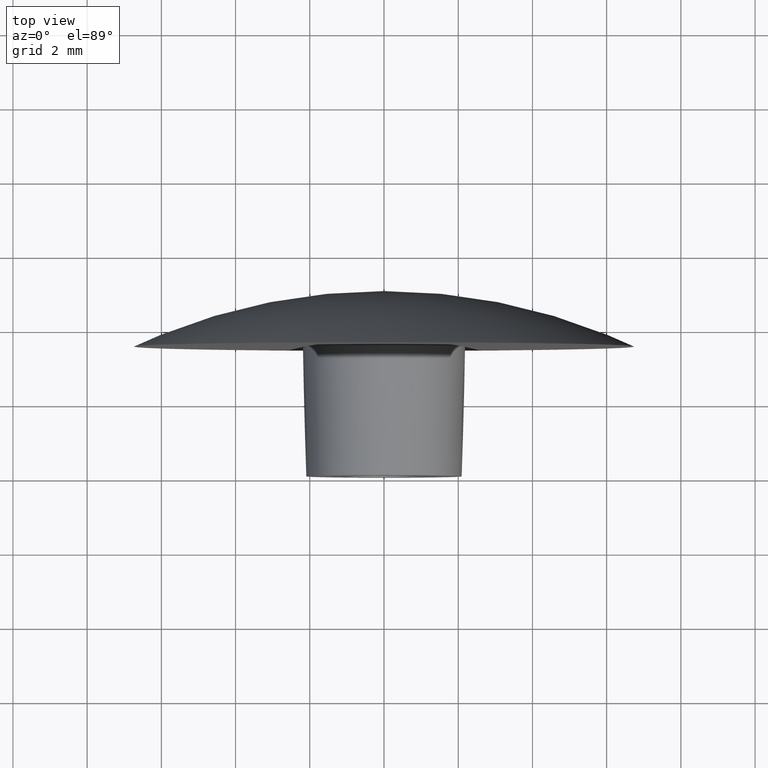
[diagram: clean part render]
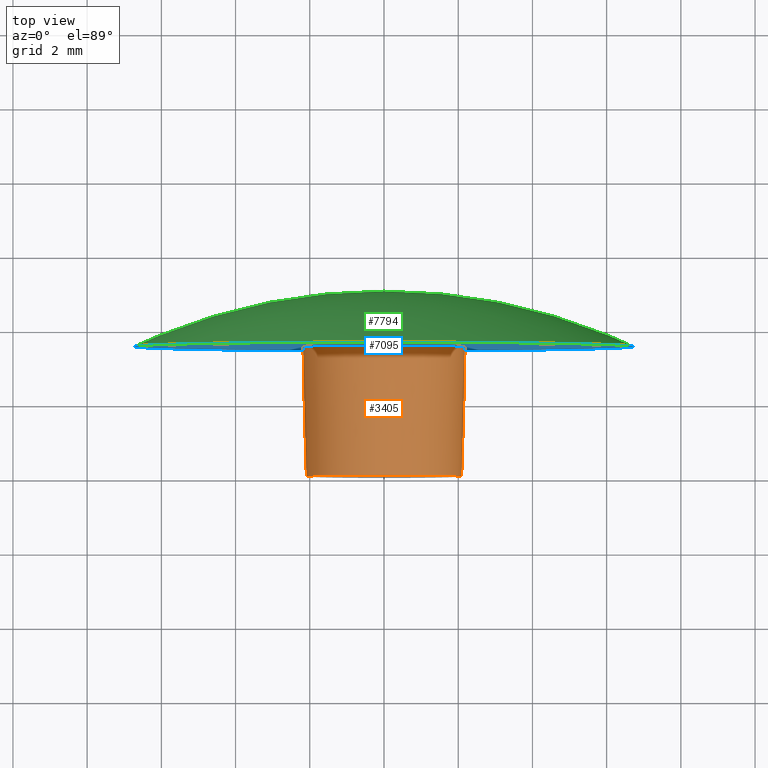
[diagram: same view with three faces highlighted in distinct colors, each labeled with its STEP entity id]
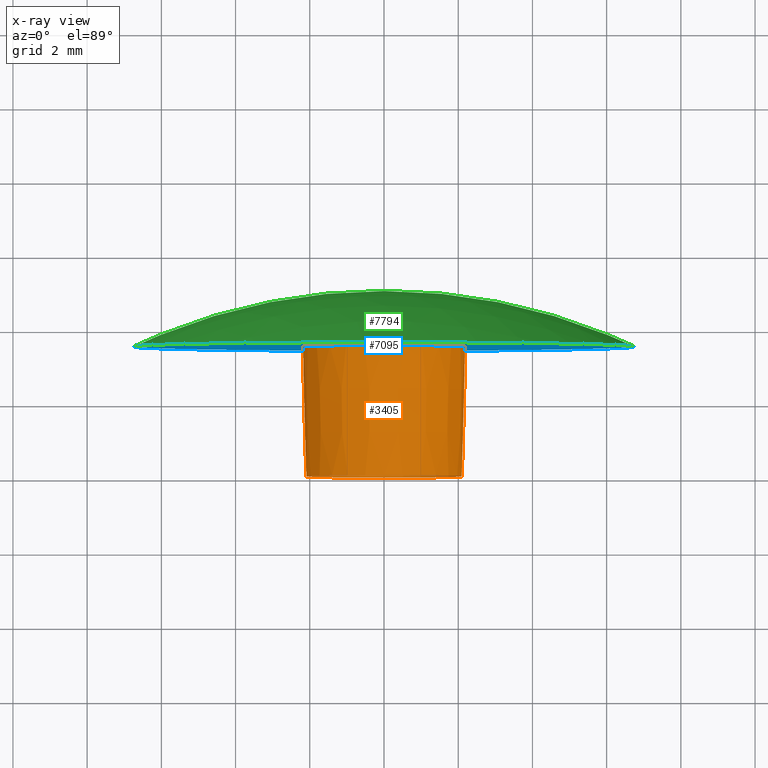
[diagram: x-ray of the same camera — body ghosted, the three highlighted faces saturated]
A machine part, top view with three faces highlighted in distinct colors.
The next image is the same camera in x-ray (body ghosted, the three faces saturated) — at least one of them is partly hidden behind the body in this view.
Their STEP definitions:

[orange] entity #3405 — the highlighted conical surface has half-angle 1.5 deg.
#359 = CIRCLE ( 'NONE', #7577, 2.108349274507870685 ) ;
#816 = ORIENTED_EDGE ( 'NONE', *, *, #9065, .T. ) ;
#935 = AXIS2_PLACEMENT_3D ( 'NONE', #7928, #4397, #2578 ) ;
#2578 = DIRECTION ( 'NONE',  ( 0.000000000000000000, 0.000000000000000000, -1.000000000000000000 ) ) ;
#2773 = ORIENTED_EDGE ( 'NONE', *, *, #6195, .F. ) ;
#3181 = DIRECTION ( 'NONE',  ( 0.000000000000000000, 1.000000000000000000, 0.000000000000000000 ) ) ;
#3405 = ADVANCED_FACE ( 'NONE', ( #7073, #6798 ), #4160, .T. ) ;
#4160 = CONICAL_SURFACE ( 'NONE', #6064, 2.108349274507870685, 0.02617993877990773890 ) ;
#4344 = CARTESIAN_POINT ( 'NONE',  ( 0.000000000000000000, 0.000000000000000000, 0.000000000000000000 ) ) ;
#4397 = DIRECTION ( 'NONE',  ( -0.000000000000000000, -1.000000000000000000, -0.000000000000000000 ) ) ;
#4967 = CARTESIAN_POINT ( 'NONE',  ( 0.000000000000000000, 0.000000000000000000, 0.000000000000000000 ) ) ;
#5087 = CARTESIAN_POINT ( 'NONE',  ( 0.000000000000000000, 3.500000000000000000, -2.199999999999999734 ) ) ;
#5204 = VERTEX_POINT ( 'NONE', #5087 ) ;
#5249 = DIRECTION ( 'NONE',  ( 0.000000000000000000, 0.000000000000000000, -1.000000000000000000 ) ) ;
#5765 = VERTEX_POINT ( 'NONE', #10754 ) ;
#6064 = AXIS2_PLACEMENT_3D ( 'NONE', #4967, #3181, #6660 ) ;
#6195 = EDGE_CURVE ( 'NONE', #5765, #5765, #359, .T. ) ;
#6660 = DIRECTION ( 'NONE',  ( 0.000000000000000000, 0.000000000000000000, 1.000000000000000000 ) ) ;
#6798 = FACE_BOUND ( 'NONE', #6941, .T. ) ;
#6941 = EDGE_LOOP ( 'NONE', ( #2773 ) ) ;
#7073 = FACE_OUTER_BOUND ( 'NONE', #8762, .T. ) ;
#7577 = AXIS2_PLACEMENT_3D ( 'NONE', #4344, #10554, #5249 ) ;
#7928 = CARTESIAN_POINT ( 'NONE',  ( 0.000000000000000000, 3.500000000000000000, 0.000000000000000000 ) ) ;
#8762 = EDGE_LOOP ( 'NONE', ( #816 ) ) ;
#9065 = EDGE_CURVE ( 'NONE', #5204, #5204, #10250, .T. ) ;
#10250 = CIRCLE ( 'NONE', #935, 2.199999999999999734 ) ;
#10554 = DIRECTION ( 'NONE',  ( -0.000000000000000000, -1.000000000000000000, -0.000000000000000000 ) ) ;
#10754 = CARTESIAN_POINT ( 'NONE',  ( 0.000000000000000000, 0.000000000000000000, -2.108349274507870685 ) ) ;

[blue] entity #7095 — the highlighted planar face has unit normal (0, -1, -0).
#121 = AXIS2_PLACEMENT_3D ( 'NONE', #4050, #4724, #1139 ) ;
#935 = AXIS2_PLACEMENT_3D ( 'NONE', #7928, #4397, #2578 ) ;
#999 = VERTEX_POINT ( 'NONE', #7684 ) ;
#1139 = DIRECTION ( 'NONE',  ( 0.000000000000000000, 0.000000000000000000, -1.000000000000000000 ) ) ;
#1868 = FACE_OUTER_BOUND ( 'NONE', #6034, .T. ) ;
#2578 = DIRECTION ( 'NONE',  ( 0.000000000000000000, 0.000000000000000000, -1.000000000000000000 ) ) ;
#3473 = AXIS2_PLACEMENT_3D ( 'NONE', #4020, #4059, #7670 ) ;
#4020 = CARTESIAN_POINT ( 'NONE',  ( 0.000000000000000000, 3.500000000000001332, 0.000000000000000000 ) ) ;
#4050 = CARTESIAN_POINT ( 'NONE',  ( 2.199999999999999734, 3.500000000000000444, 0.000000000000000000 ) ) ;
#4059 = DIRECTION ( 'NONE',  ( -0.000000000000000000, -1.000000000000000000, -0.000000000000000000 ) ) ;
#4397 = DIRECTION ( 'NONE',  ( -0.000000000000000000, -1.000000000000000000, -0.000000000000000000 ) ) ;
#4622 = EDGE_LOOP ( 'NONE', ( #4816 ) ) ;
#4724 = DIRECTION ( 'NONE',  ( 0.000000000000000000, -1.000000000000000000, -0.000000000000000000 ) ) ;
#4816 = ORIENTED_EDGE ( 'NONE', *, *, #9065, .F. ) ;
#5087 = CARTESIAN_POINT ( 'NONE',  ( 0.000000000000000000, 3.500000000000000000, -2.199999999999999734 ) ) ;
#5204 = VERTEX_POINT ( 'NONE', #5087 ) ;
#6034 = EDGE_LOOP ( 'NONE', ( #9290 ) ) ;
#7095 = ADVANCED_FACE ( 'NONE', ( #1868, #7854 ), #7359, .T. ) ;
#7359 = PLANE ( 'NONE',  #121 ) ;
#7670 = DIRECTION ( 'NONE',  ( 0.000000000000000000, 0.000000000000000000, -1.000000000000000000 ) ) ;
#7684 = CARTESIAN_POINT ( 'NONE',  ( 0.000000000000000000, 3.500000000000001332, -6.749999999999998224 ) ) ;
#7854 = FACE_BOUND ( 'NONE', #4622, .T. ) ;
#7920 = EDGE_CURVE ( 'NONE', #999, #999, #8867, .T. ) ;
#7928 = CARTESIAN_POINT ( 'NONE',  ( 0.000000000000000000, 3.500000000000000000, 0.000000000000000000 ) ) ;
#8867 = CIRCLE ( 'NONE', #3473, 6.749999999999998224 ) ;
#9065 = EDGE_CURVE ( 'NONE', #5204, #5204, #10250, .T. ) ;
#9290 = ORIENTED_EDGE ( 'NONE', *, *, #7920, .T. ) ;
#10250 = CIRCLE ( 'NONE', #935, 2.199999999999999734 ) ;

[green] entity #7794 — the highlighted spherical surface has radius 15.9375 mm.
#278 = DIRECTION ( 'NONE',  ( 0.000000000000000000, 0.000000000000000000, 1.000000000000000000 ) ) ;
#999 = VERTEX_POINT ( 'NONE', #7684 ) ;
#1307 = DIRECTION ( 'NONE',  ( 1.000000000000000000, 0.000000000000000000, 0.000000000000000000 ) ) ;
#2550 = EDGE_LOOP ( 'NONE', ( #7726 ) ) ;
#3473 = AXIS2_PLACEMENT_3D ( 'NONE', #4020, #4059, #7670 ) ;
#4020 = CARTESIAN_POINT ( 'NONE',  ( 0.000000000000000000, 3.500000000000001332, 0.000000000000000000 ) ) ;
#4059 = DIRECTION ( 'NONE',  ( -0.000000000000000000, -1.000000000000000000, -0.000000000000000000 ) ) ;
#5549 = FACE_OUTER_BOUND ( 'NONE', #2550, .T. ) ;
#5677 = SPHERICAL_SURFACE ( 'NONE', #10866, 15.93750000000000000 ) ;
#6547 = CARTESIAN_POINT ( 'NONE',  ( 0.000000000000000000, -10.93750000000000178, 0.000000000000000000 ) ) ;
#7670 = DIRECTION ( 'NONE',  ( 0.000000000000000000, 0.000000000000000000, -1.000000000000000000 ) ) ;
#7684 = CARTESIAN_POINT ( 'NONE',  ( 0.000000000000000000, 3.500000000000001332, -6.749999999999998224 ) ) ;
#7726 = ORIENTED_EDGE ( 'NONE', *, *, #7920, .F. ) ;
#7794 = ADVANCED_FACE ( 'NONE', ( #5549 ), #5677, .T. ) ;
#7920 = EDGE_CURVE ( 'NONE', #999, #999, #8867, .T. ) ;
#8867 = CIRCLE ( 'NONE', #3473, 6.749999999999998224 ) ;
#10866 = AXIS2_PLACEMENT_3D ( 'NONE', #6547, #278, #1307 ) ;